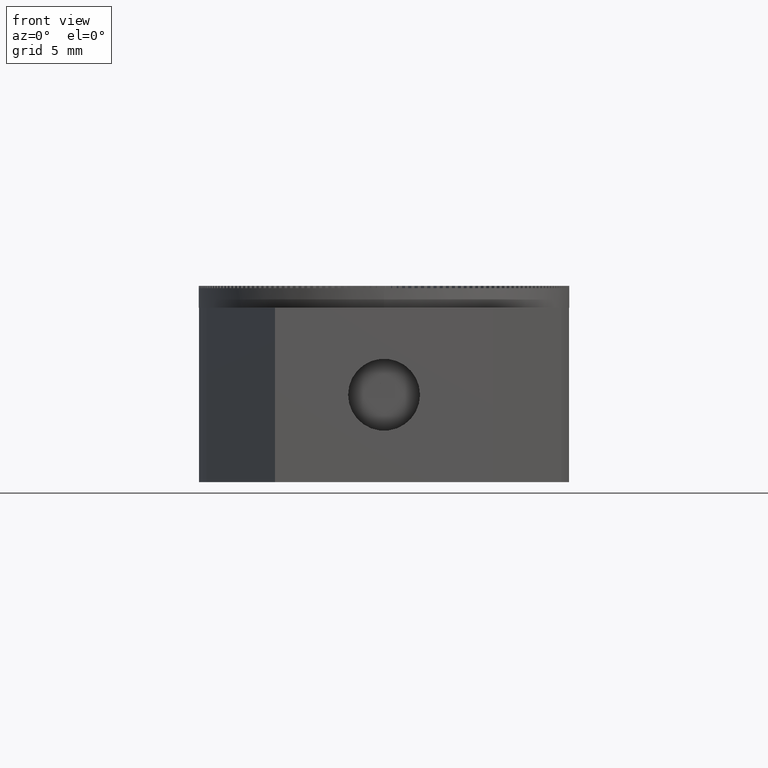
[diagram: clean part render]
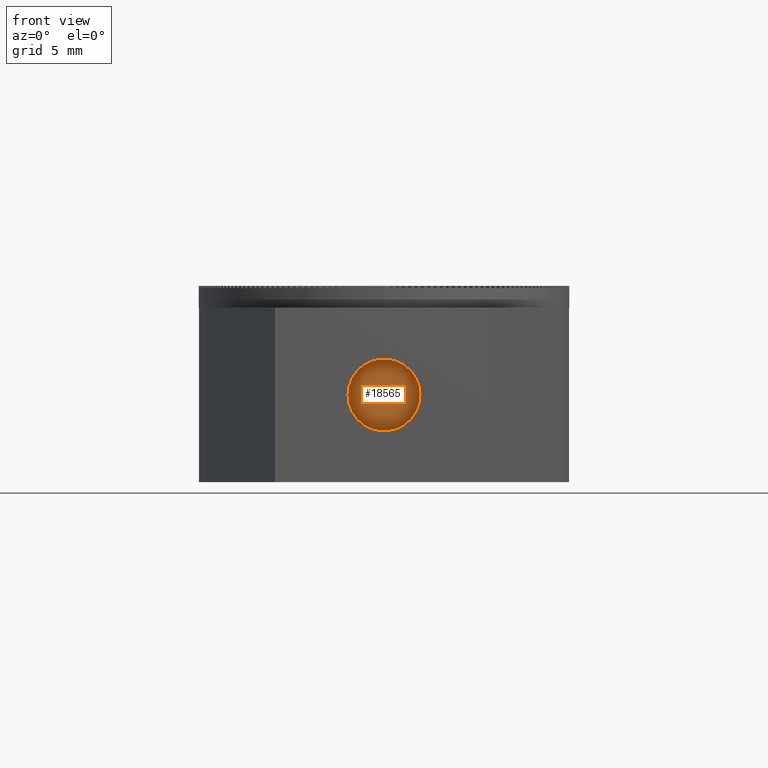
[diagram: same view with one face highlighted and labeled with its STEP entity id]
A machine part, front view. The second image highlights one B-rep face of the part: STEP entity #18565.
In plain terms, the highlighted planar face has unit normal (-0, 1, 0).
Its self-contained STEP definition (entity closure, byte-faithful):
#731 = DIRECTION ( 'NONE',  ( -0.000000000000000000, -0.000000000000000000, 1.000000000000000000 ) ) ;
#11266 = CARTESIAN_POINT ( 'NONE',  ( 2.535365080273789674E-16, 4.000000000000000000, 7.000000000000000000 ) ) ;
#11929 = EDGE_CURVE ( 'NONE', #36930, #22664, #54048, .T. ) ;
#15970 = EDGE_CURVE ( 'NONE', #22664, #36930, #40463, .T. ) ;
#18565 = ADVANCED_FACE ( 'NONE', ( #23298 ), #18807, .F. ) ;
#18807 = PLANE ( 'NONE',  #19185 ) ;
#19185 = AXIS2_PLACEMENT_3D ( 'NONE', #42797, #62302, #52709 ) ;
#19648 = DIRECTION ( 'NONE',  ( -0.000000000000000000, -0.000000000000000000, 1.000000000000000000 ) ) ;
#22664 = VERTEX_POINT ( 'NONE', #41158 ) ;
#23298 = FACE_OUTER_BOUND ( 'NONE', #29522, .T. ) ;
#26505 = AXIS2_PLACEMENT_3D ( 'NONE', #48755, #19648, #34985 ) ;
#27019 = CARTESIAN_POINT ( 'NONE',  ( 1.649999999999998135, 4.000000000000000000, 7.000000000000000000 ) ) ;
#29522 = EDGE_LOOP ( 'NONE', ( #62786, #33855 ) ) ;
#30230 = AXIS2_PLACEMENT_3D ( 'NONE', #11266, #731, #34943 ) ;
#33855 = ORIENTED_EDGE ( 'NONE', *, *, #15970, .T. ) ;
#34943 = DIRECTION ( 'NONE',  ( 1.000000000000000000, 0.000000000000000000, 0.000000000000000000 ) ) ;
#34985 = DIRECTION ( 'NONE',  ( 1.000000000000000000, 0.000000000000000000, 0.000000000000000000 ) ) ;
#36930 = VERTEX_POINT ( 'NONE', #27019 ) ;
#40463 = CIRCLE ( 'NONE', #30230, 1.649999999999997913 ) ;
#41158 = CARTESIAN_POINT ( 'NONE',  ( -1.649999999999997913, 4.000000000000000000, 7.000000000000000000 ) ) ;
#42797 = CARTESIAN_POINT ( 'NONE',  ( -1.216039650949444783E-15, 4.000000000000000000, 7.000000000000000000 ) ) ;
#48755 = CARTESIAN_POINT ( 'NONE',  ( 2.535365080273789674E-16, 4.000000000000000000, 7.000000000000000000 ) ) ;
#52709 = DIRECTION ( 'NONE',  ( -1.000000000000000000, 0.000000000000000000, -0.000000000000000000 ) ) ;
#54048 = CIRCLE ( 'NONE', #26505, 1.649999999999997913 ) ;
#62302 = DIRECTION ( 'NONE',  ( 0.000000000000000000, 0.000000000000000000, -1.000000000000000000 ) ) ;
#62786 = ORIENTED_EDGE ( 'NONE', *, *, #11929, .T. ) ;